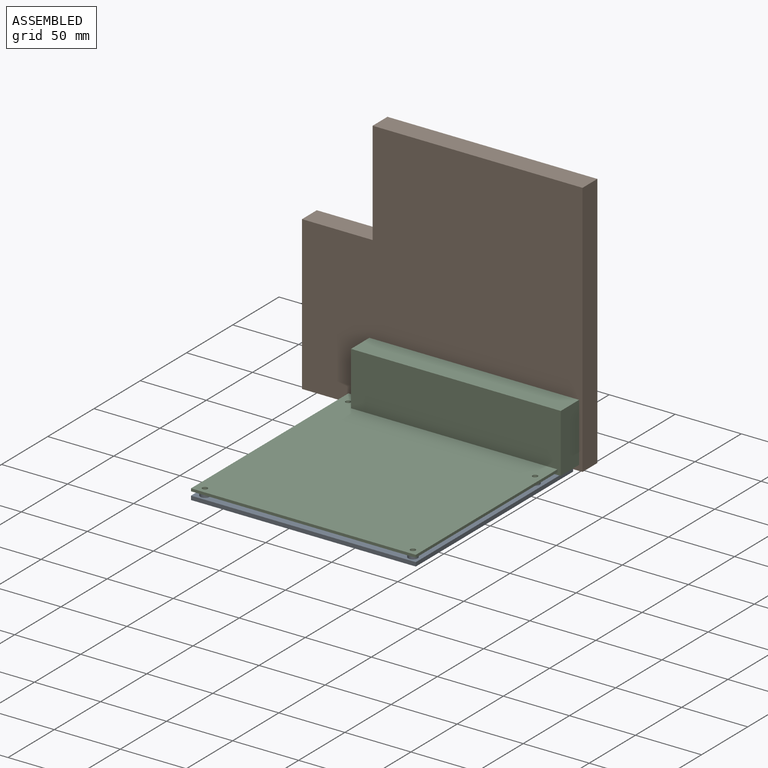
[diagram: assembled view]
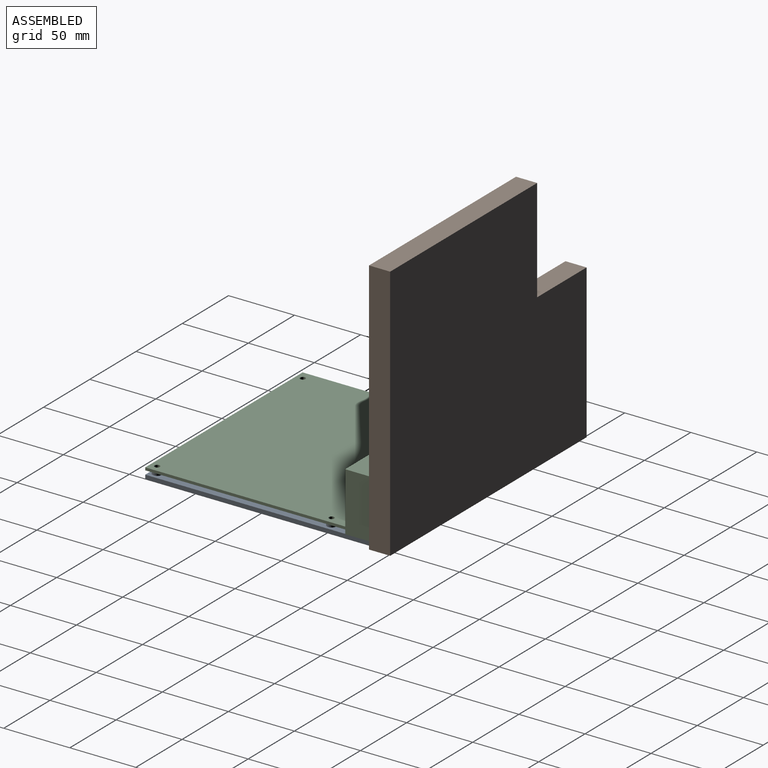
[diagram: assembled view, second angle]
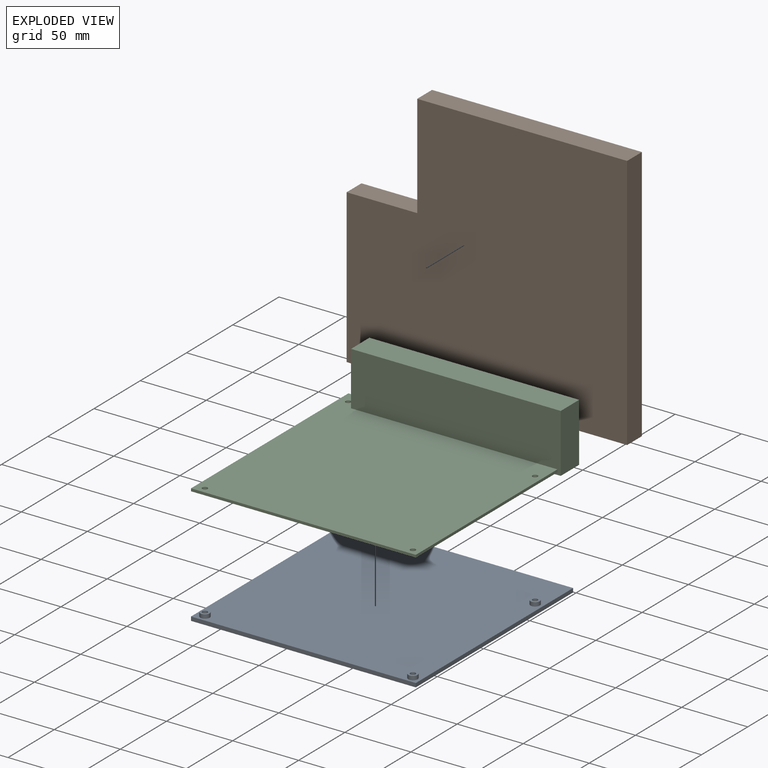
[diagram: exploded view]
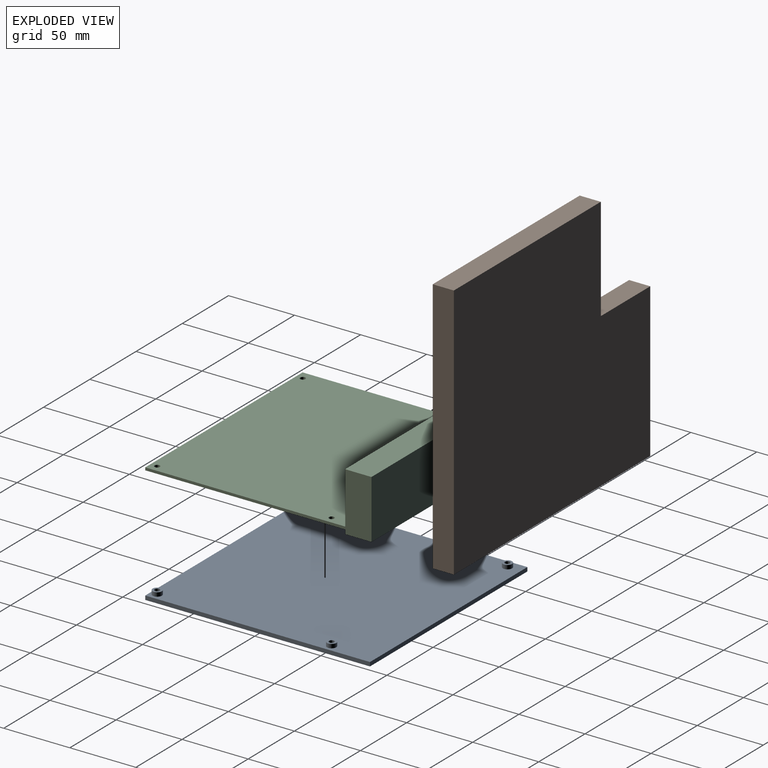
[diagram: exploded view, second angle]
ASSEMBLY  parts=3 mates=2
PART A: 18 faces, bbox 170.2x170.2x6 mm
  f0: plane 170.18x3mm, normal (-1,0,0), area 510.5mm2, adj f1,f3,f4,f5
  f1: plane 170.19x3mm, normal (0,-1,0), area 510.6mm2, adj f0,f2,f4,f5
  f2: plane 170.18x3mm, normal (1,0,0), area 510.5mm2, adj f1,f3,f4,f5
  f3: plane 170.19x3mm, normal (0,1,0), area 510.6mm2, adj f0,f2,f4,f5
  f4: plane 170.19x170.18mm, normal (0,0,1), area 28809mm2, adj f0,f1,f2,f3,f7,f10,f13,f16
  f5: plane 170.19x170.18mm, normal (0,0,-1), area 28913.7mm2, adj f0,f1,f2,f3,f6,f9,f12,f15
  f6: cylinder r=1.98mm len=6mm, axis (0,0,-1), area 74.6mm2, adj f5,f8
  f7: cylinder r=3.5mm len=7mm, axis (0,0,-1), area 66mm2, adj f4,f8
  f8: plane 7x7mm, normal (0,0,1), area 26.2mm2, adj f6,f7
  f9: cylinder r=1.98mm len=6mm, axis (0,0,-1), area 74.6mm2, adj f5,f11
  f10: cylinder r=3.5mm len=7mm, axis (0,0,-1), area 66mm2, adj f4,f11
  f11: plane 7x7mm, normal (0,0,1), area 26.2mm2, adj f9,f10
  f12: cylinder r=1.98mm len=6mm, axis (0,0,-1), area 74.6mm2, adj f5,f14
  f13: cylinder r=3.5mm len=7mm, axis (0,0,-1), area 66mm2, adj f4,f14
  f14: plane 7x7mm, normal (0,0,1), area 26.2mm2, adj f12,f13
  f15: cylinder r=1.98mm len=6mm, axis (0,0,-1), area 74.6mm2, adj f5,f17
  f16: cylinder r=3.5mm len=7mm, axis (0,0,-1), area 66mm2, adj f4,f17
  f17: plane 7x7mm, normal (0,0,1), area 26.2mm2, adj f15,f16
PART B: 8 faces, bbox 212.4x194.4x16 mm
  f0: plane 158.94x16mm, normal (0,1,0), area 2543mm2, adj f1,f5,f6,f7
  f1: plane 194.43x16mm, normal (1,0,0), area 3110.8mm2, adj f0,f2,f6,f7
  f2: plane 212.39x16mm, normal (0,-1,0), area 3398.2mm2, adj f1,f3,f6,f7
  f3: plane 116.2x16mm, normal (-1,0,0), area 1859.2mm2, adj f2,f4,f6,f7
  f4: plane 53.45x16mm, normal (0,1,0), area 855.2mm2, adj f3,f5,f6,f7
  f5: plane 78.23x16mm, normal (-1,0,0), area 1251.6mm2, adj f0,f4,f6,f7
  f6: plane 212.39x194.43mm, normal (0,0,-1), area 37112.2mm2, adj f0,f1,f2,f3,f4,f5
  f7: plane 212.39x194.43mm, normal (0,0,1), area 37112.2mm2, adj f0,f1,f2,f3,f4,f5
PART C: 16 faces, bbox 172.7x173x44.5 mm
  f0: plane 170.19x170.18mm, normal (0,0,1), area 26257.5mm2, adj f1,f2,f3,f4,f5,f6,f7,f8
  f1: plane 153.19x2mm, normal (1,0,0), area 306.4mm2, adj f0,f7,f9,f12
  f2: plane 13.89x2mm, normal (0,1,0), area 27.8mm2, adj f0,f3,f9,f10
  f3: plane 170.18x2mm, normal (-1,0,0), area 340.4mm2, adj f0,f2,f7,f9
  f4: cylinder r=1.98mm len=3.96mm, axis (0,0,1), area 24.9mm2, adj f0,f9
  f5: cylinder r=1.98mm len=3.96mm, axis (0,0,1), area 24.9mm2, adj f0,f9
  f6: cylinder r=1.98mm len=3.96mm, axis (0,0,1), area 24.9mm2, adj f0,f9
  f7: plane 170.19x2mm, normal (0,-1,0), area 340.4mm2, adj f0,f1,f3,f9
  f8: cylinder r=1.98mm len=3.96mm, axis (0,0,1), area 24.9mm2, adj f0,f9
  f9: plane 170.19x170.18mm, normal (0,0,-1), area 26257.5mm2, adj f1,f2,f3,f4,f5,f6,f7,f8
  f10: plane 44.45x19.85mm, normal (-1,0,0), area 848.3mm2, adj f0,f2,f9,f11,f12,f14,f15
  f11: plane 158.79x44.45mm, normal (0,1,0), area 7058.2mm2, adj f10,f13,f14,f15
  f12: plane 158.79x44.45mm, normal (0,-1,0), area 6745.6mm2, adj f0,f1,f9,f10,f13,f14,f15
  f13: plane 44.45x19.85mm, normal (1,0,0), area 882.3mm2, adj f11,f12,f14,f15
  f14: plane 158.79x19.85mm, normal (0,0,-1), area 3151.8mm2, adj f10,f11,f12,f13
  f15: plane 158.79x19.85mm, normal (0,0,1), area 3151.8mm2, adj f10,f11,f12,f13
PLACE A t=(-27.62,128.59,8.7)mm
PLACE B rot(axis=(1,0,0),90deg) t=(-46.56,99.76,105.94)mm
PLACE C t=(-108.66,25.32,16.7)mm
MATE planar B.f7 <-> C.f11  axis (0,-1,0) through (-37.61,193.28,99.37)mm
MATE planar A.f5 <-> B.f2  axis (0,0,-1) through (-30.56,105.34,8.7)mm
